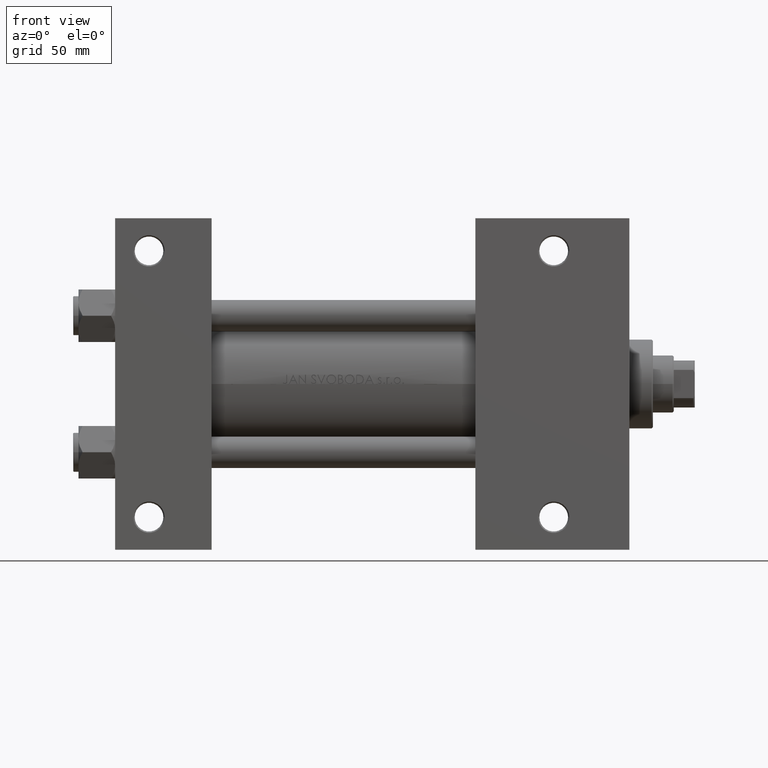
[diagram: clean part render]
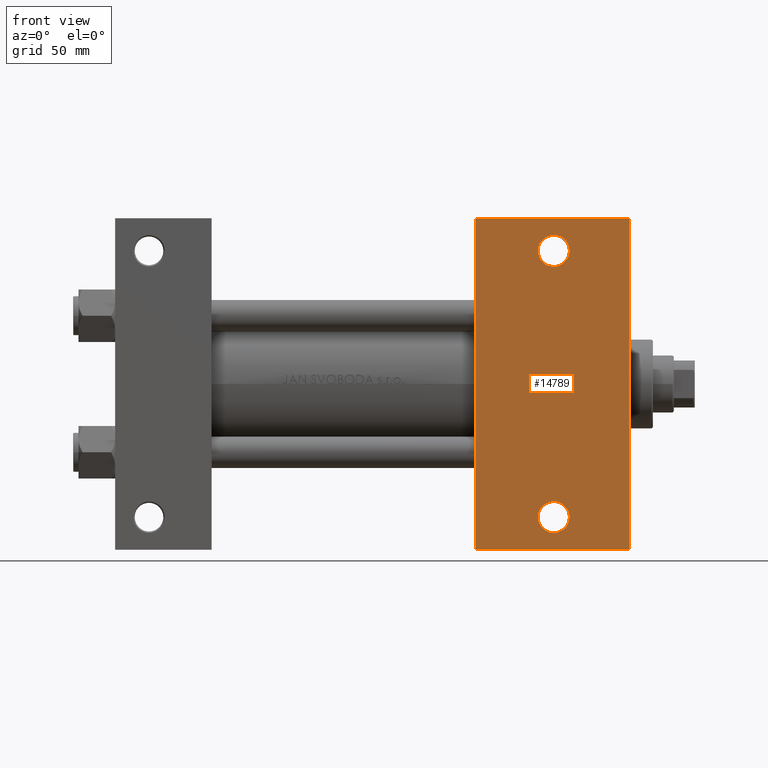
[diagram: same view with one face highlighted and labeled with its STEP entity id]
A machine part, front view. The second image highlights one B-rep face of the part: STEP entity #14789.
In plain terms, the highlighted planar face has unit normal (0, -1, 0).
Its self-contained STEP definition (entity closure, byte-faithful):
#324 = LINE ( 'NONE', #34678, #39216 ) ;
#2396 = FACE_OUTER_BOUND ( 'NONE', #20813, .T. ) ;
#3178 = LINE ( 'NONE', #40284, #21541 ) ;
#3628 = EDGE_CURVE ( 'NONE', #41867, #37495, #16521, .T. ) ;
#4138 = DIRECTION ( 'NONE',  ( -1.000000000000000000, 0.000000000000000000, 0.000000000000000000 ) ) ;
#5483 = VERTEX_POINT ( 'NONE', #47801 ) ;
#5885 = FACE_BOUND ( 'NONE', #6627, .T. ) ;
#5937 = VERTEX_POINT ( 'NONE', #7617 ) ;
#6157 = DIRECTION ( 'NONE',  ( -1.000000000000000000, 0.000000000000000000, 0.000000000000000000 ) ) ;
#6416 = VERTEX_POINT ( 'NONE', #18385 ) ;
#6627 = EDGE_LOOP ( 'NONE', ( #37080, #8944 ) ) ;
#6630 = DIRECTION ( 'NONE',  ( -0.000000000000000000, -0.000000000000000000, 1.000000000000000000 ) ) ;
#6982 = CIRCLE ( 'NONE', #14916, 5.999499999999962974 ) ;
#7052 = AXIS2_PLACEMENT_3D ( 'NONE', #10024, #47650, #29684 ) ;
#7273 = VERTEX_POINT ( 'NONE', #38033 ) ;
#7617 = CARTESIAN_POINT ( 'NONE',  ( 162.0005000000000734, 51.00000000000000000, -37.50000000000000000 ) ) ;
#7806 = AXIS2_PLACEMENT_3D ( 'NONE', #43497, #28063, #17105 ) ;
#8944 = ORIENTED_EDGE ( 'NONE', *, *, #25927, .T. ) ;
#9068 = EDGE_CURVE ( 'NONE', #6416, #41867, #324, .T. ) ;
#9400 = CIRCLE ( 'NONE', #10176, 5.999499999999962974 ) ;
#10024 = CARTESIAN_POINT ( 'NONE',  ( 168.0000000000000284, -50.99999999999999289, -37.50000000000000000 ) ) ;
#10176 = AXIS2_PLACEMENT_3D ( 'NONE', #28794, #6630, #6157 ) ;
#13273 = CARTESIAN_POINT ( 'NONE',  ( 197.0000000000000000, 37.50000000000000000, -37.50000000000000000 ) ) ;
#13587 = PLANE ( 'NONE',  #41781 ) ;
#13915 = DIRECTION ( 'NONE',  ( 0.000000000000000000, -1.000000000000000000, 0.000000000000000000 ) ) ;
#14789 = ADVANCED_FACE ( 'NONE', ( #5885, #29274, #2396 ), #13587, .T. ) ;
#14916 = AXIS2_PLACEMENT_3D ( 'NONE', #26037, #30031, #4138 ) ;
#16521 = LINE ( 'NONE', #13273, #24034 ) ;
#17105 = DIRECTION ( 'NONE',  ( -1.000000000000000000, 0.000000000000000000, 0.000000000000000000 ) ) ;
#18385 = CARTESIAN_POINT ( 'NONE',  ( 138.0000000000000284, 63.49999999999997158, -37.50000000000000000 ) ) ;
#20655 = ORIENTED_EDGE ( 'NONE', *, *, #3628, .T. ) ;
#20813 = EDGE_LOOP ( 'NONE', ( #27297, #45747, #20655, #40045 ) ) ;
#21541 = VECTOR ( 'NONE', #40033, 1000.000000000000000 ) ;
#22117 = VERTEX_POINT ( 'NONE', #26630 ) ;
#23449 = DIRECTION ( 'NONE',  ( 1.000000000000000000, 4.704334850106595794E-16, 0.000000000000000000 ) ) ;
#24034 = VECTOR ( 'NONE', #31720, 1000.000000000000000 ) ;
#25927 = EDGE_CURVE ( 'NONE', #22117, #5937, #6982, .T. ) ;
#26037 = CARTESIAN_POINT ( 'NONE',  ( 168.0000000000000284, 51.00000000000000000, -37.50000000000000000 ) ) ;
#26630 = CARTESIAN_POINT ( 'NONE',  ( 173.9995000000000118, 51.00000000000000000, -37.50000000000000000 ) ) ;
#26716 = EDGE_CURVE ( 'NONE', #5483, #7273, #30064, .T. ) ;
#26952 = EDGE_CURVE ( 'NONE', #5937, #22117, #9400, .T. ) ;
#27297 = ORIENTED_EDGE ( 'NONE', *, *, #47006, .F. ) ;
#28063 = DIRECTION ( 'NONE',  ( -0.000000000000000000, -0.000000000000000000, 1.000000000000000000 ) ) ;
#28568 = EDGE_CURVE ( 'NONE', #7273, #5483, #46027, .T. ) ;
#28794 = CARTESIAN_POINT ( 'NONE',  ( 168.0000000000000284, 51.00000000000000000, -37.50000000000000000 ) ) ;
#29105 = LINE ( 'NONE', #48536, #40795 ) ;
#29274 = FACE_BOUND ( 'NONE', #47577, .T. ) ;
#29684 = DIRECTION ( 'NONE',  ( -1.000000000000000000, 0.000000000000000000, 0.000000000000000000 ) ) ;
#30031 = DIRECTION ( 'NONE',  ( -0.000000000000000000, -0.000000000000000000, 1.000000000000000000 ) ) ;
#30064 = CIRCLE ( 'NONE', #7806, 5.999499999999962974 ) ;
#30184 = ORIENTED_EDGE ( 'NONE', *, *, #28568, .T. ) ;
#31720 = DIRECTION ( 'NONE',  ( 0.000000000000000000, -1.000000000000000000, 0.000000000000000000 ) ) ;
#32767 = CARTESIAN_POINT ( 'NONE',  ( 197.0000000000000000, 37.50000000000000000, -37.50000000000000000 ) ) ;
#33193 = VERTEX_POINT ( 'NONE', #35574 ) ;
#34678 = CARTESIAN_POINT ( 'NONE',  ( 138.0000000000000284, 63.49999999999997158, -37.50000000000000000 ) ) ;
#34905 = CARTESIAN_POINT ( 'NONE',  ( 197.0000000000000000, -63.50000000000002842, -37.50000000000000000 ) ) ;
#35574 = CARTESIAN_POINT ( 'NONE',  ( 138.0000000000000000, -63.50000000000000000, -37.50000000000000000 ) ) ;
#36557 = ORIENTED_EDGE ( 'NONE', *, *, #26716, .T. ) ;
#36743 = DIRECTION ( 'NONE',  ( 0.000000000000000000, 0.000000000000000000, -1.000000000000000000 ) ) ;
#37080 = ORIENTED_EDGE ( 'NONE', *, *, #26952, .T. ) ;
#37495 = VERTEX_POINT ( 'NONE', #34905 ) ;
#37901 = EDGE_CURVE ( 'NONE', #37495, #33193, #3178, .T. ) ;
#38033 = CARTESIAN_POINT ( 'NONE',  ( 162.0005000000000734, -50.99999999999999289, -37.50000000000000000 ) ) ;
#39216 = VECTOR ( 'NONE', #23449, 1000.000000000000000 ) ;
#40033 = DIRECTION ( 'NONE',  ( -1.000000000000000000, 4.704334850106595794E-16, -0.000000000000000000 ) ) ;
#40045 = ORIENTED_EDGE ( 'NONE', *, *, #37901, .T. ) ;
#40183 = CARTESIAN_POINT ( 'NONE',  ( 197.0000000000000284, 63.50000000000000000, -37.50000000000000000 ) ) ;
#40284 = CARTESIAN_POINT ( 'NONE',  ( 138.0000000000000000, -63.50000000000000000, -37.50000000000000000 ) ) ;
#40795 = VECTOR ( 'NONE', #13915, 1000.000000000000000 ) ;
#41781 = AXIS2_PLACEMENT_3D ( 'NONE', #32767, #36743, #47966 ) ;
#41867 = VERTEX_POINT ( 'NONE', #40183 ) ;
#43497 = CARTESIAN_POINT ( 'NONE',  ( 168.0000000000000284, -50.99999999999999289, -37.50000000000000000 ) ) ;
#45747 = ORIENTED_EDGE ( 'NONE', *, *, #9068, .T. ) ;
#46027 = CIRCLE ( 'NONE', #7052, 5.999499999999962974 ) ;
#47006 = EDGE_CURVE ( 'NONE', #6416, #33193, #29105, .T. ) ;
#47577 = EDGE_LOOP ( 'NONE', ( #30184, #36557 ) ) ;
#47650 = DIRECTION ( 'NONE',  ( -0.000000000000000000, -0.000000000000000000, 1.000000000000000000 ) ) ;
#47801 = CARTESIAN_POINT ( 'NONE',  ( 173.9995000000000118, -50.99999999999999289, -37.50000000000000000 ) ) ;
#47966 = DIRECTION ( 'NONE',  ( -1.000000000000000000, 0.000000000000000000, -0.000000000000000000 ) ) ;
#48536 = CARTESIAN_POINT ( 'NONE',  ( 138.0000000000000000, 37.50000000000000000, -37.50000000000000000 ) ) ;